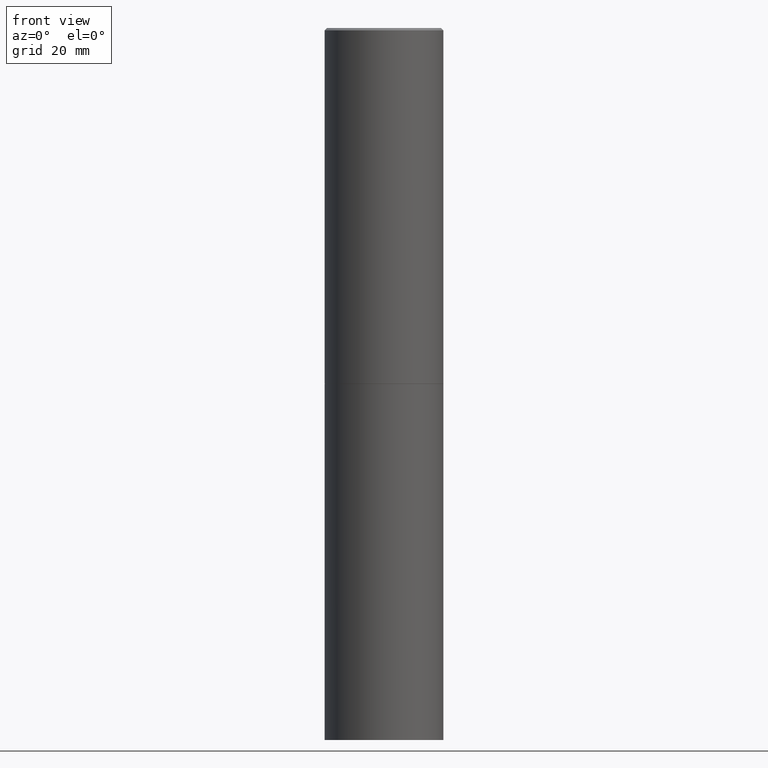
[diagram: clean part render]
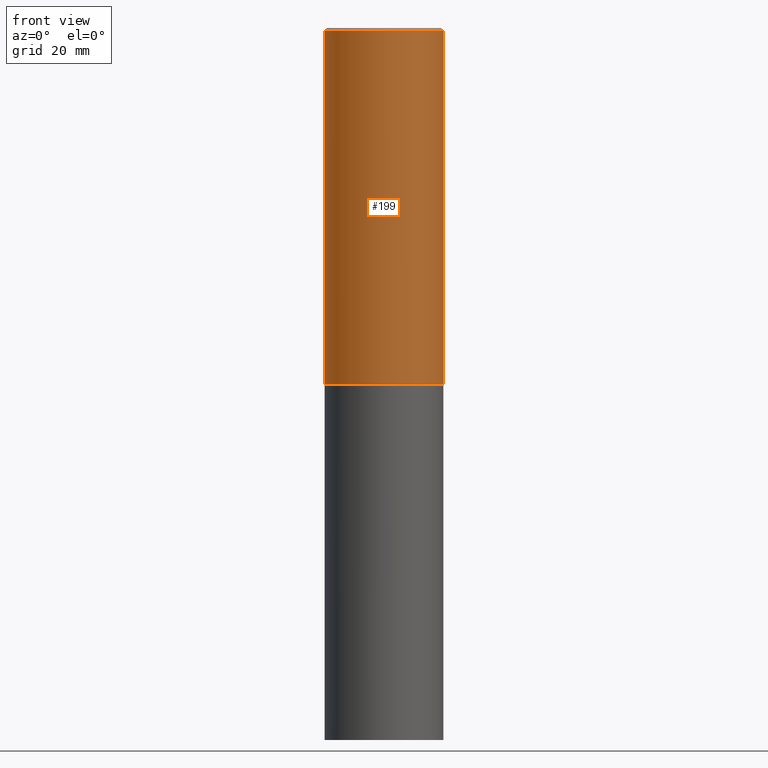
[diagram: same view with one face highlighted and labeled with its STEP entity id]
A machine part, front view. The second image highlights one B-rep face of the part: STEP entity #199.
In plain terms, the highlighted cylindrical surface (partial cylindrical patch) has radius 12.5006 mm, axis along (-0, 0, 1).
Its self-contained STEP definition (entity closure, byte-faithful):
#7 = VECTOR ( 'NONE', #366, 39.37007874015748143 ) ;
#30 = DIRECTION ( 'NONE',  ( -2.445468806185136597E-29, 3.491481338843145583E-15, 1.000000000000000000 ) ) ;
#35 = CIRCLE ( 'NONE', #56, 0.4921499999999996988 ) ;
#38 = VERTEX_POINT ( 'NONE', #266 ) ;
#49 = DIRECTION ( 'NONE',  ( -2.445468806185136877E-29, 3.491481338843145188E-15, 1.000000000000000000 ) ) ;
#56 = AXIS2_PLACEMENT_3D ( 'NONE', #118, #285, #115 ) ;
#65 = EDGE_CURVE ( 'NONE', #90, #140, #128, .T. ) ;
#81 = CARTESIAN_POINT ( 'NONE',  ( 7.218290275216666916E-29, -1.030580546786331359E-14, -2.951700000000000212 ) ) ;
#90 = VERTEX_POINT ( 'NONE', #187 ) ;
#95 = EDGE_CURVE ( 'NONE', #203, #38, #106, .T. ) ;
#101 = FACE_OUTER_BOUND ( 'NONE', #195, .T. ) ;
#106 = LINE ( 'NONE', #216, #240 ) ;
#115 = DIRECTION ( 'NONE',  ( 1.000000000000000000, -6.982962677686265922E-15, 0.000000000000000000 ) ) ;
#118 = CARTESIAN_POINT ( 'NONE',  ( 4.890937612370296805E-31, -6.982962677686323656E-17, -0.02000000000000009409 ) ) ;
#121 = AXIS2_PLACEMENT_3D ( 'NONE', #164, #30, #276 ) ;
#127 = CARTESIAN_POINT ( 'NONE',  ( -0.4921499999999998098, 3.496936074043331714E-15, -2.420853904668950949E-29 ) ) ;
#128 = LINE ( 'NONE', #127, #7 ) ;
#132 = CARTESIAN_POINT ( 'NONE',  ( 0.4921499999999999764, -1.374247054968660936E-14, -2.951700000000000212 ) ) ;
#140 = VERTEX_POINT ( 'NONE', #295 ) ;
#143 = EDGE_CURVE ( 'NONE', #90, #203, #343, .T. ) ;
#164 = CARTESIAN_POINT ( 'NONE',  ( 0.000000000000000000, 0.000000000000000000, 0.000000000000000000 ) ) ;
#166 = ORIENTED_EDGE ( 'NONE', *, *, #300, .F. ) ;
#179 = ORIENTED_EDGE ( 'NONE', *, *, #95, .T. ) ;
#187 = CARTESIAN_POINT ( 'NONE',  ( -0.4921499999999999764, -1.690881473276754954E-15, -2.951700000000000212 ) ) ;
#188 = DIRECTION ( 'NONE',  ( -2.445468806185136597E-29, 3.491481338843145583E-15, 1.000000000000000000 ) ) ;
#195 = EDGE_LOOP ( 'NONE', ( #227, #340, #179, #166 ) ) ;
#199 = ADVANCED_FACE ( 'NONE', ( #101 ), #267, .T. ) ;
#203 = VERTEX_POINT ( 'NONE', #132 ) ;
#210 = DIRECTION ( 'NONE',  ( 1.000000000000000000, -6.982962677686265922E-15, 0.000000000000000000 ) ) ;
#216 = CARTESIAN_POINT ( 'NONE',  ( 0.4921499999999998098, -3.436665081823294593E-15, 2.399810400207968762E-29 ) ) ;
#227 = ORIENTED_EDGE ( 'NONE', *, *, #65, .F. ) ;
#240 = VECTOR ( 'NONE', #49, 39.37007874015748143 ) ;
#266 = CARTESIAN_POINT ( 'NONE',  ( 0.4921499999999996988, -3.446223716380120377E-15, -0.02000000000000009409 ) ) ;
#267 = CYLINDRICAL_SURFACE ( 'NONE', #121, 0.4921499999999998098 ) ;
#272 = AXIS2_PLACEMENT_3D ( 'NONE', #81, #188, #210 ) ;
#276 = DIRECTION ( 'NONE',  ( 1.000000000000000000, -6.982962677686265922E-15, 4.876176775795935793E-29 ) ) ;
#285 = DIRECTION ( 'NONE',  ( -2.445468806185136597E-29, 3.491481338843145583E-15, 1.000000000000000000 ) ) ;
#295 = CARTESIAN_POINT ( 'NONE',  ( -0.4921499999999996988, 3.366835455046430506E-15, -0.02000000000000009409 ) ) ;
#300 = EDGE_CURVE ( 'NONE', #140, #38, #35, .T. ) ;
#340 = ORIENTED_EDGE ( 'NONE', *, *, #143, .T. ) ;
#343 = CIRCLE ( 'NONE', #272, 0.4921499999999999764 ) ;
#366 = DIRECTION ( 'NONE',  ( -2.445468806185136877E-29, 3.491481338843145188E-15, 1.000000000000000000 ) ) ;